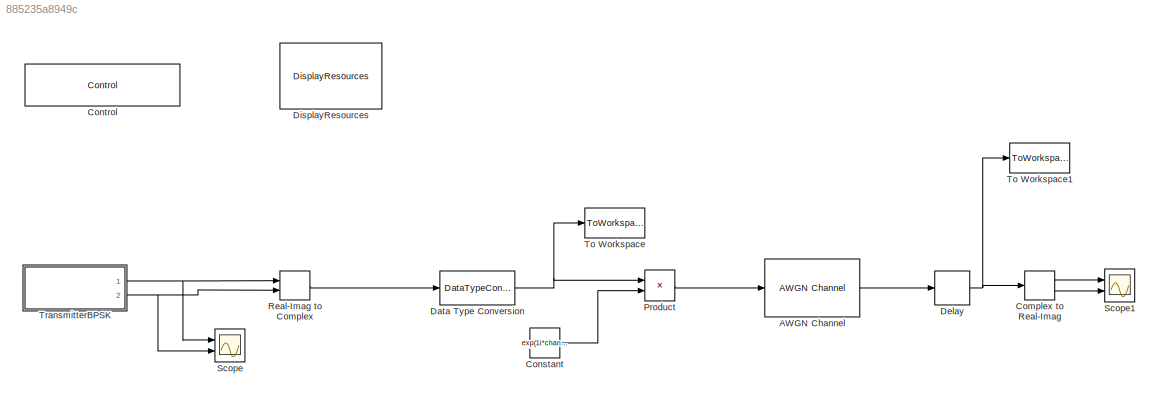
MODEL slx_885235a8949c
KIND model
CONFIG AbsTol = auto
CONFIG EnableMultiTasking = off
CONFIG FixedStep = stepSize
CONFIG InitFcn = MCC150_setup
CONFIG MaxStep = auto
CONFIG MinStep = auto
CONFIG RelTol = 1e-3
CONFIG SampleTimeConstraint = Unconstrained
CONFIG Solver = FixedStepAuto
CONFIG SolverName = FixedStepAuto
CONFIG StartTime = 0.0
CONFIG StopTime = stopTime
BLOCK [Reference] AWGN Channel  REF=commchan3/AWGN
Channel
  Ports = [1, 1]
  SourceBlock = commchan3/AWGN\nChannel
  SourceProductBaseCode = CM
  SourceProductName = Communications System Toolbox
  SourceType = AWGN Channel
  UserDataPersistent = on
BLOCK [ComplexToRealImag] Complex to Real-Imag
  Ports = [1, 2]
BLOCK [Constant] Constant
  Value = exp(1i*chan.phase)
BLOCK [Reference] Control  REF=DSPBABase/Control
  Ports = []
  SourceBlock = DSPBABase/Control
  SourceType = DSP Builder Advanced Blockset Control Block
BLOCK [DataTypeConversion] Data Type Conversion
  OutDataTypeStr = double
  RndMeth = Floor
  SaturateOnIntegerOverflow = off
BLOCK [Delay] Delay
  DelayLength = chan.dly
  InputPortMap = u0
  Ports = [1, 1]
BLOCK [Reference] DisplayResources  REF=DSPBAUtilities/DisplayResources
  Ports = []
  SourceBlock = DSPBAUtilities/DisplayResources
BLOCK [Product] Product
  InputSameDT = off
  OutDataTypeStr = Inherit: Inherit via internal rule
  Ports = [2, 1]
  RndMeth = Floor
  SaturateOnIntegerOverflow = off
BLOCK [RealImagToComplex] Real-Imag to Complex
  Ports = [2, 1]
BLOCK [Scope] Scope
  NumInputPorts = 2
  Ports = [2]
  ScopeSpecificationString = Simulink.scopes.TimeScopeBlockCfg('CurrentConfiguration', extmgr.ConfigurationSet(extmgr.Configuration('Core','General UI',true),extmgr.Configuration('Core','Source UI',true),extmgr.Configuration('Sources','WiredSimulink',true,'DataLoggingVariableName','ScopeData2'),extmgr.Configuration('Visuals','Time Domain',true,'SerializedDisplays',{struct('MinYLimReal','-2558.75','MaxYLimReal','2558.75','YLab...<+1455ch>
BLOCK [Scope] Scope1
  NumInputPorts = 2
  Ports = [2]
  ScopeSpecificationString = Simulink.scopes.TimeScopeBlockCfg('CurrentConfiguration', extmgr.ConfigurationSet(extmgr.Configuration('Core','General UI',true),extmgr.Configuration('Core','Source UI',true),extmgr.Configuration('Sources','WiredSimulink',true,'DataLoggingVariableName','ScopeData3'),extmgr.Configuration('Visuals','Time Domain',true,'SerializedDisplays',{struct('MinYLimReal','-2828.47173','MaxYLimReal','2807.08041'...<+2091ch>
BLOCK [ToWorkspace] To Workspace
  FixptAsFi = on
  MaxDataPoints = inf
  Ports = [1]
  SampleTime = -1
  Save2DSignal = 3-D array (concatenate along third dimension)
  SaveFormat = Timeseries
  VariableName = txSave
BLOCK [ToWorkspace] To Workspace1
  FixptAsFi = on
  MaxDataPoints = inf
  Ports = [1]
  SampleTime = -1
  Save2DSignal = 3-D array (concatenate along third dimension)
  SaveFormat = Timeseries
  VariableName = rxSave
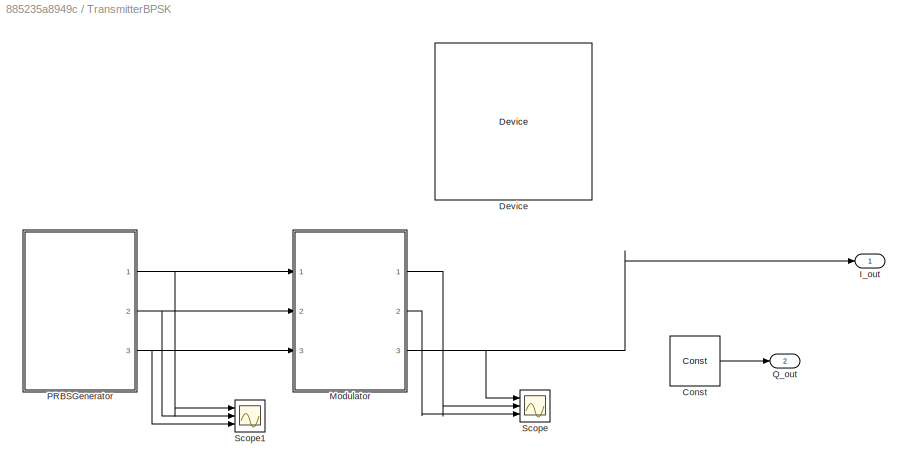
BLOCK [SubSystem] TransmitterBPSK
  Ports = [0, 2]
  RequestExecContextInheritance = off
  Variant = off
BLOCK [Reference] TransmitterBPSK/Const  REF=DSPBAPrim/Const
  Ports = [0, 1]
  SourceBlock = DSPBAPrim/Const
  SourceType = DSP Builder Advanced Blockset primitive
BLOCK [Reference] TransmitterBPSK/Device  REF=DSPBABase/Device
  Ports = []
  SourceBlock = DSPBABase/Device
  SourceType = DSP Builder Advanced Blockset Device Block
BLOCK [Outport] TransmitterBPSK/I_out
  IconDisplay = Port number
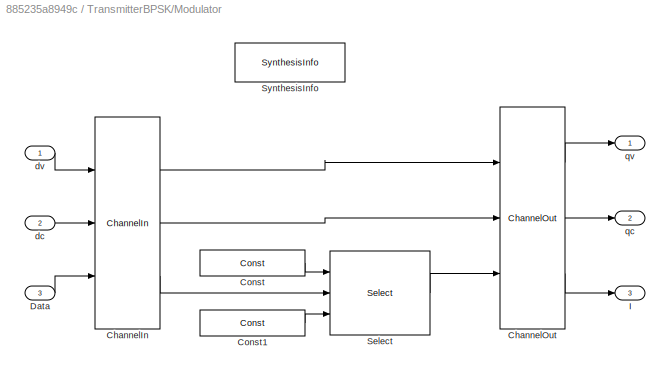
BLOCK [SubSystem] TransmitterBPSK/Modulator
  Ports = [3, 3]
  RequestExecContextInheritance = off
  Variant = off
BLOCK [Reference] TransmitterBPSK/Modulator/ChannelIn  REF=DSPBAPrim/ChannelIn
  Ports = [3, 3]
  SourceBlock = DSPBAPrim/ChannelIn
  SourceType = DSP Builder Advanced Blockset primitive
BLOCK [Reference] TransmitterBPSK/Modulator/ChannelOut  REF=DSPBAPrim/ChannelOut
  Ports = [3, 3]
  SourceBlock = DSPBAPrim/ChannelOut
  SourceType = DSP Builder Advanced Blockset primitive
BLOCK [Reference] TransmitterBPSK/Modulator/Const  REF=DSPBAPrim/Const
  Ports = [0, 1]
  SourceBlock = DSPBAPrim/Const
  SourceType = DSP Builder Advanced Blockset primitive
BLOCK [Reference] TransmitterBPSK/Modulator/Const1  REF=DSPBAPrim/Const
  Ports = [0, 1]
  SourceBlock = DSPBAPrim/Const
  SourceType = DSP Builder Advanced Blockset primitive
BLOCK [Inport] TransmitterBPSK/Modulator/Data
  IconDisplay = Port number
  Port = 3
BLOCK [Outport] TransmitterBPSK/Modulator/I
  IconDisplay = Port number
  Port = 3
BLOCK [Reference] TransmitterBPSK/Modulator/Select  REF=DSPBAPrim/Select
  Ports = [3, 1]
  SourceBlock = DSPBAPrim/Select
  SourceType = DSP Builder Advanced Blockset primitive
BLOCK [Reference] TransmitterBPSK/Modulator/SynthesisInfo  REF=DSPBAPrim/SynthesisInfo
  Ports = []
  SourceBlock = DSPBAPrim/SynthesisInfo
  SourceType = DSP Builder Advanced Blockset primitive
BLOCK [Inport] TransmitterBPSK/Modulator/dc
  IconDisplay = Port number
  Port = 2
BLOCK [Inport] TransmitterBPSK/Modulator/dv 
  IconDisplay = Port number
BLOCK [Outport] TransmitterBPSK/Modulator/qc
  IconDisplay = Port number
  Port = 2
BLOCK [Outport] TransmitterBPSK/Modulator/qv
  IconDisplay = Port number
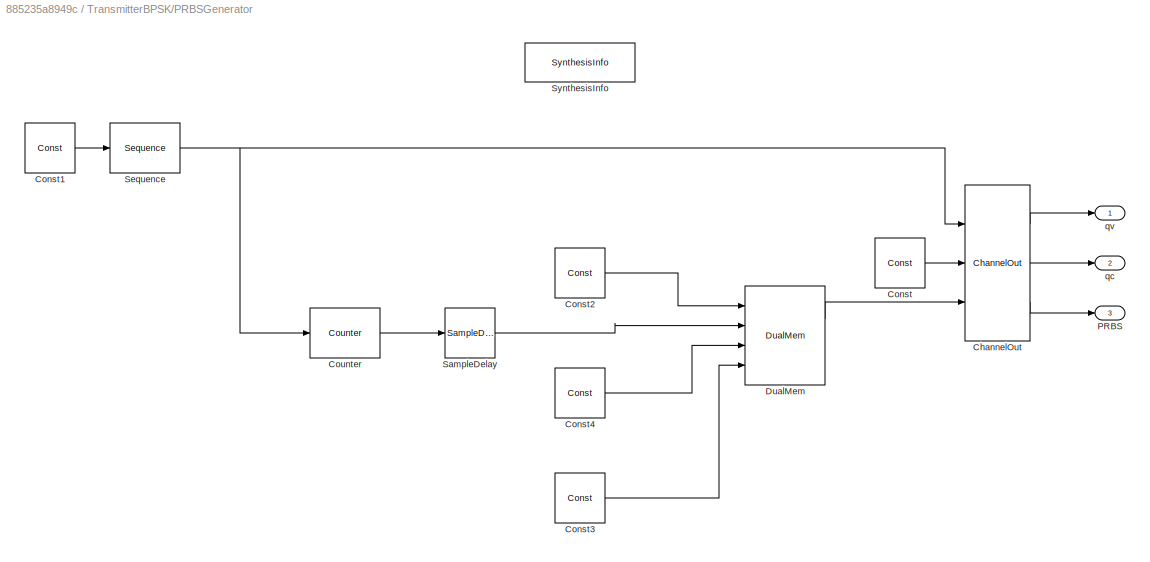
BLOCK [SubSystem] TransmitterBPSK/PRBSGenerator
  Ports = [0, 3]
  RequestExecContextInheritance = off
  Variant = off
BLOCK [Reference] TransmitterBPSK/PRBSGenerator/ChannelOut  REF=DSPBAPrim/ChannelOut
  Ports = [3, 3]
  SourceBlock = DSPBAPrim/ChannelOut
  SourceType = DSP Builder Advanced Blockset primitive
BLOCK [Reference] TransmitterBPSK/PRBSGenerator/Const  REF=DSPBAPrim/Const
  Ports = [0, 1]
  SourceBlock = DSPBAPrim/Const
  SourceType = DSP Builder Advanced Blockset primitive
BLOCK [Reference] TransmitterBPSK/PRBSGenerator/Const1  REF=DSPBAPrim/Const
  Ports = [0, 1]
  SourceBlock = DSPBAPrim/Const
  SourceType = DSP Builder Advanced Blockset primitive
BLOCK [Reference] TransmitterBPSK/PRBSGenerator/Const2  REF=DSPBAPrim/Const
  Ports = [0, 1]
  SourceBlock = DSPBAPrim/Const
  SourceType = DSP Builder Advanced Blockset primitive
BLOCK [Reference] TransmitterBPSK/PRBSGenerator/Const3  REF=DSPBAPrim/Const
  Ports = [0, 1]
  SourceBlock = DSPBAPrim/Const
  SourceType = DSP Builder Advanced Blockset primitive
BLOCK [Reference] TransmitterBPSK/PRBSGenerator/Const4  REF=DSPBAPrim/Const
  Ports = [0, 1]
  SourceBlock = DSPBAPrim/Const
  SourceType = DSP Builder Advanced Blockset primitive
BLOCK [Reference] TransmitterBPSK/PRBSGenerator/Counter  REF=DSPBAPrim/Counter
  Ports = [1, 1]
  SourceBlock = DSPBAPrim/Counter
  SourceType = DSP Builder Advanced Blockset primitive
BLOCK [Reference] TransmitterBPSK/PRBSGenerator/DualMem  REF=DSPBAPrim/DualMem
  Ports = [4, 2]
  SourceBlock = DSPBAPrim/DualMem
  SourceType = DSP Builder Advanced Blockset primitive
BLOCK [Outport] TransmitterBPSK/PRBSGenerator/PRBS
  IconDisplay = Port number
  Port = 3
BLOCK [Reference] TransmitterBPSK/PRBSGenerator/SampleDelay  REF=DSPBAPrim/SampleDelay
  Ports = [1, 1]
  SourceBlock = DSPBAPrim/SampleDelay
  SourceType = DSP Builder Advanced Blockset primitive
BLOCK [Reference] TransmitterBPSK/PRBSGenerator/Sequence  REF=DSPBAPrim/Sequence
  Ports = [1, 1]
  SourceBlock = DSPBAPrim/Sequence
  SourceType = DSP Builder Advanced Blockset primitive
BLOCK [Reference] TransmitterBPSK/PRBSGenerator/SynthesisInfo  REF=DSPBAPrim/SynthesisInfo
  Ports = []
  SourceBlock = DSPBAPrim/SynthesisInfo
  SourceType = DSP Builder Advanced Blockset primitive
BLOCK [Outport] TransmitterBPSK/PRBSGenerator/qc
  IconDisplay = Port number
  Port = 2
BLOCK [Outport] TransmitterBPSK/PRBSGenerator/qv
  IconDisplay = Port number
BLOCK [Outport] TransmitterBPSK/Q_out
  IconDisplay = Port number
  Port = 2
BLOCK [Scope] TransmitterBPSK/Scope
  NumInputPorts = 3
  Ports = [3]
  ScopeSpecificationString = Simulink.scopes.TimeScopeBlockCfg('CurrentConfiguration', extmgr.ConfigurationSet(extmgr.Configuration('Core','General UI',true),extmgr.Configuration('Core','Source UI',true),extmgr.Configuration('Sources','WiredSimulink',true),extmgr.Configuration('Visuals','Time Domain',true,'SerializedDisplays',{struct('MinYLimReal','-2558.75','MaxYLimReal','2558.75','YLabelReal','','MinYLimMag','  0.00000','Ma...<+2720ch>
BLOCK [Scope] TransmitterBPSK/Scope1
  NumInputPorts = 3
  Ports = [3]
  ScopeSpecificationString = Simulink.scopes.TimeScopeBlockCfg('CurrentConfiguration', extmgr.ConfigurationSet(extmgr.Configuration('Core','General UI',true),extmgr.Configuration('Core','Source UI',true),extmgr.Configuration('Sources','WiredSimulink',true,'DataLoggingVariableName','ScopeData1'),extmgr.Configuration('Visuals','Time Domain',true,'SerializedDisplays',{struct('MinYLimReal','-0.125','MaxYLimReal','1.125','YLabelRe...<+2734ch>
LINE AWGN Channel:1 -> Delay:1
LINE Complex to Real-Imag:1 -> Scope1:1
LINE Complex to Real-Imag:2 -> Scope1:2
LINE Constant:1 -> Product:2
NET Data Type Conversion:1 -> Product:1, To Workspace:1
NET Delay:1 -> Complex to Real-Imag:1, To Workspace1:1
LINE Product:1 -> AWGN Channel:1
LINE Real-Imag to Complex:1 -> Data Type Conversion:1
LINE TransmitterBPSK/Const:1 -> TransmitterBPSK/Q_out:1
LINE TransmitterBPSK/Modulator/ChannelIn:1 -> TransmitterBPSK/Modulator/ChannelOut:1
LINE TransmitterBPSK/Modulator/ChannelIn:2 -> TransmitterBPSK/Modulator/ChannelOut:2
LINE TransmitterBPSK/Modulator/ChannelIn:3 -> TransmitterBPSK/Modulator/Select:2
LINE TransmitterBPSK/Modulator/ChannelOut:1 -> TransmitterBPSK/Modulator/qv:1
LINE TransmitterBPSK/Modulator/ChannelOut:2 -> TransmitterBPSK/Modulator/qc:1
LINE TransmitterBPSK/Modulator/ChannelOut:3 -> TransmitterBPSK/Modulator/I:1
LINE TransmitterBPSK/Modulator/Const1:1 -> TransmitterBPSK/Modulator/Select:3
LINE TransmitterBPSK/Modulator/Const:1 -> TransmitterBPSK/Modulator/Select:1
LINE TransmitterBPSK/Modulator/Data:1 -> TransmitterBPSK/Modulator/ChannelIn:3
LINE TransmitterBPSK/Modulator/Select:1 -> TransmitterBPSK/Modulator/ChannelOut:3
LINE TransmitterBPSK/Modulator/dc:1 -> TransmitterBPSK/Modulator/ChannelIn:2
LINE TransmitterBPSK/Modulator/dv :1 -> TransmitterBPSK/Modulator/ChannelIn:1
LINE TransmitterBPSK/Modulator:1 -> TransmitterBPSK/Scope:2
LINE TransmitterBPSK/Modulator:2 -> TransmitterBPSK/Scope:3
NET TransmitterBPSK/Modulator:3 -> TransmitterBPSK/I_out:1, TransmitterBPSK/Scope:1
LINE TransmitterBPSK/PRBSGenerator/ChannelOut:1 -> TransmitterBPSK/PRBSGenerator/qv:1
LINE TransmitterBPSK/PRBSGenerator/ChannelOut:2 -> TransmitterBPSK/PRBSGenerator/qc:1
LINE TransmitterBPSK/PRBSGenerator/ChannelOut:3 -> TransmitterBPSK/PRBSGenerator/PRBS:1
LINE TransmitterBPSK/PRBSGenerator/Const1:1 -> TransmitterBPSK/PRBSGenerator/Sequence:1
LINE TransmitterBPSK/PRBSGenerator/Const2:1 -> TransmitterBPSK/PRBSGenerator/DualMem:1
LINE TransmitterBPSK/PRBSGenerator/Const3:1 -> TransmitterBPSK/PRBSGenerator/DualMem:4
LINE TransmitterBPSK/PRBSGenerator/Const4:1 -> TransmitterBPSK/PRBSGenerator/DualMem:3
LINE TransmitterBPSK/PRBSGenerator/Const:1 -> TransmitterBPSK/PRBSGenerator/ChannelOut:2
LINE TransmitterBPSK/PRBSGenerator/Counter:1 -> TransmitterBPSK/PRBSGenerator/SampleDelay:1
LINE TransmitterBPSK/PRBSGenerator/DualMem:1 -> TransmitterBPSK/PRBSGenerator/ChannelOut:3
LINE TransmitterBPSK/PRBSGenerator/SampleDelay:1 -> TransmitterBPSK/PRBSGenerator/DualMem:2
NET TransmitterBPSK/PRBSGenerator/Sequence:1 -> TransmitterBPSK/PRBSGenerator/ChannelOut:1, TransmitterBPSK/PRBSGenerator/Counter:1
NET TransmitterBPSK/PRBSGenerator:1 -> TransmitterBPSK/Modulator:1, TransmitterBPSK/Scope1:1
NET TransmitterBPSK/PRBSGenerator:2 -> TransmitterBPSK/Modulator:2, TransmitterBPSK/Scope1:2
NET TransmitterBPSK/PRBSGenerator:3 -> TransmitterBPSK/Modulator:3, TransmitterBPSK/Scope1:3
NET TransmitterBPSK:1 -> Real-Imag to Complex:1, Scope:1
NET TransmitterBPSK:2 -> Real-Imag to Complex:2, Scope:2
note: NET lines group one-source signal fan-out (src -> all destinations, sorted); 1:1 wires keep LINE
